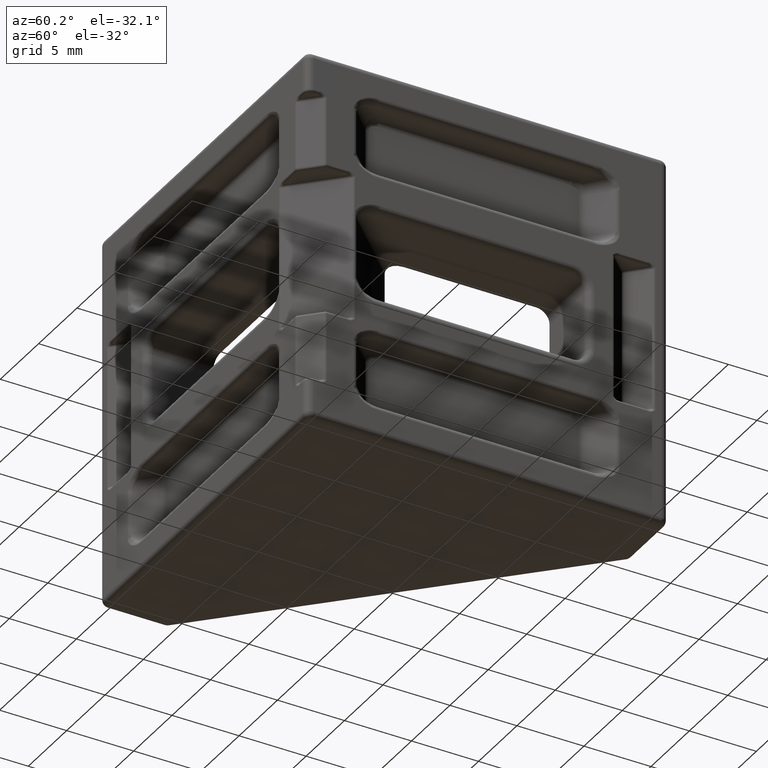
[diagram: clean part render]
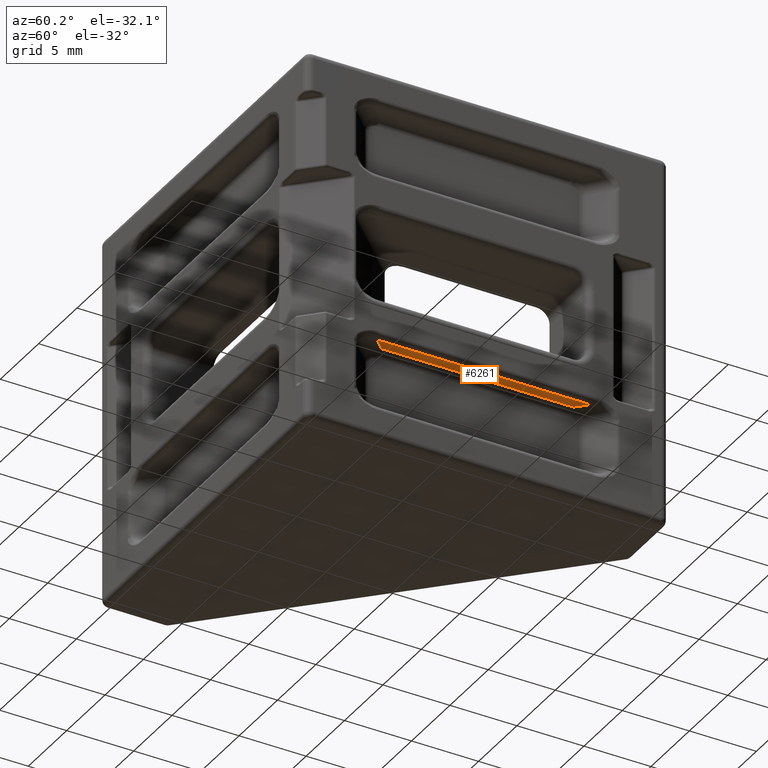
[diagram: same view with one face highlighted and labeled with its STEP entity id]
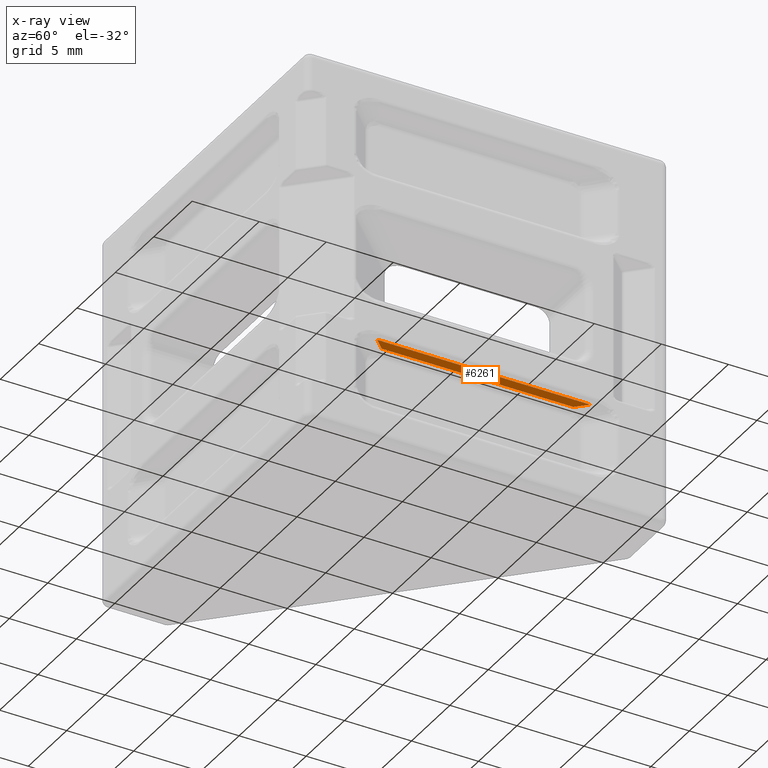
[diagram: x-ray of the same camera — body ghosted, the highlighted face saturated]
A machine part, auxiliary view. The second image highlights one B-rep face of the part: STEP entity #6261.
The next image is the same camera in x-ray: the body ghosted, the highlighted face saturated — about 0% of this face is hidden behind the body in this view.
In plain terms, the highlighted planar face has unit normal (0, 0, 1).
Its self-contained STEP definition (entity closure, byte-faithful):
#50 = CARTESIAN_POINT ( 'NONE',  ( -16.44034008019074000, 20.11729534236077300, -6.249999999999999100 ) ) ;
#282 = ORIENTED_EDGE ( 'NONE', *, *, #3750, .T. ) ;
#559 = CARTESIAN_POINT ( 'NONE',  ( -9.050966799187808200, 12.72792206135784500, -6.249999999999999100 ) ) ;
#794 = VERTEX_POINT ( 'NONE', #4242 ) ;
#889 = VECTOR ( 'NONE', #5035, 1000.000000000000000 ) ;
#1053 = CARTESIAN_POINT ( 'NONE',  ( -1.197056274847716000, 6.288225099390852600, -6.249999999999999100 ) ) ;
#1084 = EDGE_CURVE ( 'NONE', #794, #4329, #3066, .T. ) ;
#1340 = ORIENTED_EDGE ( 'NONE', *, *, #3504, .T. ) ;
#1389 = CARTESIAN_POINT ( 'NONE',  ( -1.197056274847714300, 20.58183258569794200, -6.250000000000000000 ) ) ;
#1812 = CARTESIAN_POINT ( 'NONE',  ( -0.9899494936611679100, 6.081118318204304700, -6.249999999999999100 ) ) ;
#1836 = ORIENTED_EDGE ( 'NONE', *, *, #5628, .T. ) ;
#3066 = LINE ( 'NONE', #1812, #889 ) ;
#3504 = EDGE_CURVE ( 'NONE', #5179, #3728, #9819, .T. ) ;
#3728 = VERTEX_POINT ( 'NONE', #4842 ) ;
#3750 = EDGE_CURVE ( 'NONE', #4329, #5179, #9132, .T. ) ;
#4028 = FACE_OUTER_BOUND ( 'NONE', #7613, .T. ) ;
#4132 = DIRECTION ( 'NONE',  ( 0.0000000000000000000, -1.000000000000000000, 5.379976900643416900E-017 ) ) ;
#4242 = CARTESIAN_POINT ( 'NONE',  ( -0.3999999999999995200, 5.491168824543136900, -6.249999999999999100 ) ) ;
#4249 = DIRECTION ( 'NONE',  ( -3.212450881438531700E-017, 1.000000000000000000, -5.379976900643416900E-017 ) ) ;
#4329 = VERTEX_POINT ( 'NONE', #1053 ) ;
#4482 = VECTOR ( 'NONE', #4249, 1000.000000000000000 ) ;
#4842 = CARTESIAN_POINT ( 'NONE',  ( -0.3999999999999993000, 21.37888886054566100, -6.250000000000000000 ) ) ;
#5035 = DIRECTION ( 'NONE',  ( -0.7071067811865477900, 0.7071067811865473500, -0.0000000000000000000 ) ) ;
#5179 = VERTEX_POINT ( 'NONE', #1389 ) ;
#5561 = VECTOR ( 'NONE', #6960, 999.9999999999998900 ) ;
#5628 = EDGE_CURVE ( 'NONE', #3728, #794, #8040, .T. ) ;
#5754 = CARTESIAN_POINT ( 'NONE',  ( -1.197056274847715400, 20.08183258569794600, -6.250000000000000000 ) ) ;
#6062 = AXIS2_PLACEMENT_3D ( 'NONE', #50, #8845, #4132 ) ;
#6261 = ADVANCED_FACE ( 'NONE', ( #4028 ), #8882, .F. ) ;
#6960 = DIRECTION ( 'NONE',  ( 0.7071067811865472400, 0.7071067811865479100, -7.608436298143888800E-017 ) ) ;
#7059 = DIRECTION ( 'NONE',  ( 3.212450881438531700E-017, -1.000000000000000000, 5.379976900643416900E-017 ) ) ;
#7613 = EDGE_LOOP ( 'NONE', ( #1340, #1836, #9118, #282 ) ) ;
#8040 = LINE ( 'NONE', #9560, #8564 ) ;
#8564 = VECTOR ( 'NONE', #7059, 1000.000000000000000 ) ;
#8845 = DIRECTION ( 'NONE',  ( 5.379976900643413200E-017, 5.379976900643416900E-017, 1.000000000000000000 ) ) ;
#8882 = PLANE ( 'NONE',  #6062 ) ;
#9118 = ORIENTED_EDGE ( 'NONE', *, *, #1084, .T. ) ;
#9132 = LINE ( 'NONE', #5754, #4482 ) ;
#9560 = CARTESIAN_POINT ( 'NONE',  ( -0.4000000000000010200, 20.11729534236077300, -6.250000000000000000 ) ) ;
#9819 = LINE ( 'NONE', #559, #5561 ) ;